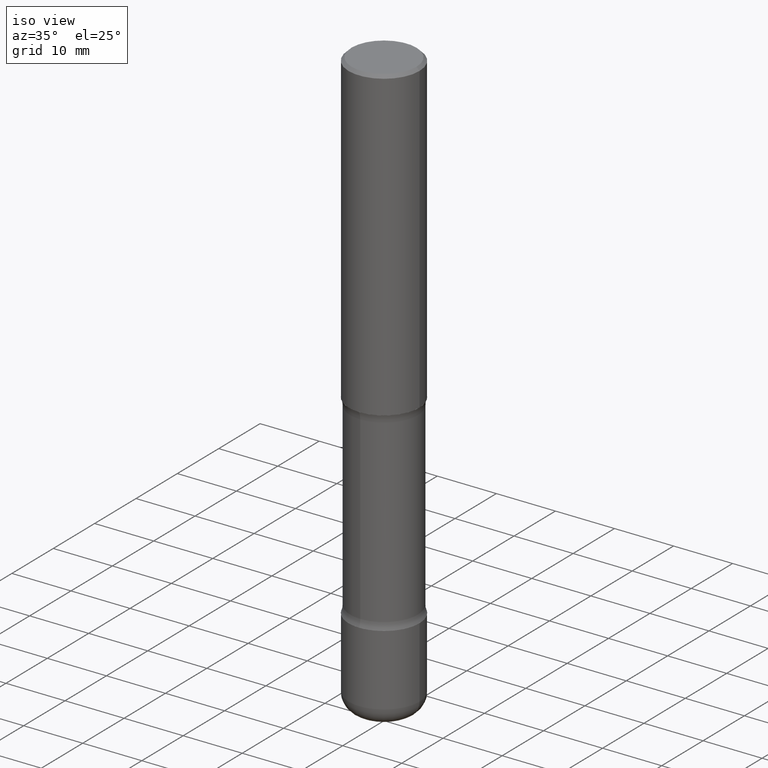
[diagram: clean part render]
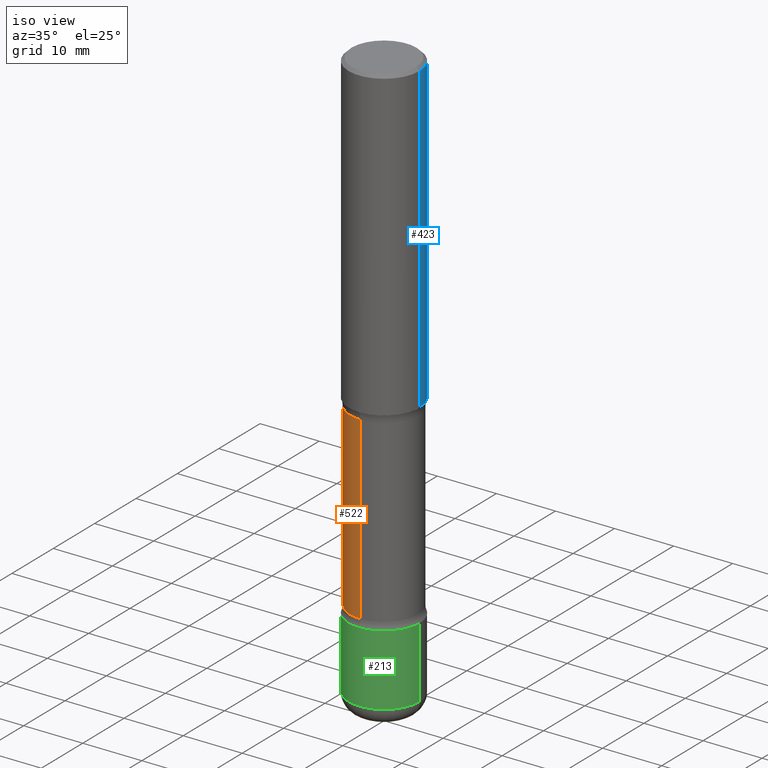
[diagram: same view with three faces highlighted in distinct colors, each labeled with its STEP entity id]
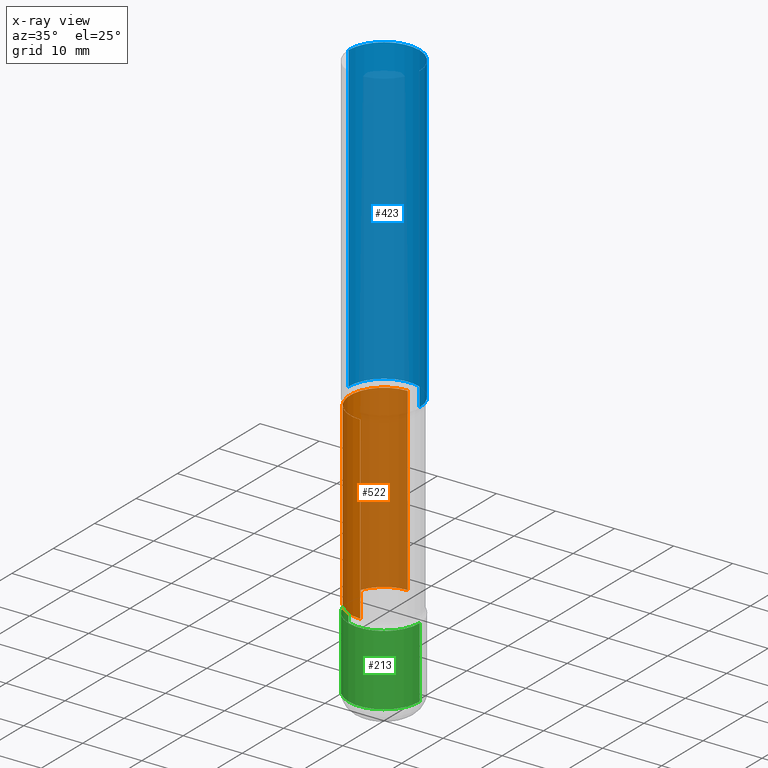
[diagram: x-ray of the same camera — body ghosted, the three highlighted faces saturated]
A machine part, iso view with three faces highlighted in distinct colors.
The next image is the same camera in x-ray (body ghosted, the three faces saturated) — at least one of them is partly hidden behind the body in this view.
Their STEP definitions:

[orange] entity #522 — the highlighted cylindrical surface (partial cylindrical patch) has radius 5.7404 mm, axis along (0, -0, -1).
#4 = DIRECTION ( 'NONE',  ( 2.207249558311628199E-29, -3.832624860395576133E-15, -1.000000000000000000 ) ) ;
#15 = CARTESIAN_POINT ( 'NONE',  ( 9.487118402156788789E-29, -1.394744139485432957E-14, -3.937000000000000277 ) ) ;
#27 = EDGE_CURVE ( 'NONE', #496, #161, #419, .T. ) ;
#43 = ORIENTED_EDGE ( 'NONE', *, *, #108, .T. ) ;
#57 = CARTESIAN_POINT ( 'NONE',  ( -1.585461087284944814E-15, -0.2260000000000063070, -2.096656647682591856 ) ) ;
#75 = ORIENTED_EDGE ( 'NONE', *, *, #134, .F. ) ;
#80 = AXIS2_PLACEMENT_3D ( 'NONE', #436, #391, #296 ) ;
#99 = LINE ( 'NONE', #179, #500 ) ;
#103 = DIRECTION ( 'NONE',  ( 2.207249558311628480E-29, -3.832624860395576133E-15, -1.000000000000000000 ) ) ;
#108 = EDGE_CURVE ( 'NONE', #174, #496, #298, .T. ) ;
#134 = EDGE_CURVE ( 'NONE', #174, #476, #99, .T. ) ;
#141 = CYLINDRICAL_SURFACE ( 'NONE', #379, 0.2259999999999997289 ) ;
#142 = DIRECTION ( 'NONE',  ( 2.207249558311628480E-29, -3.832624860395576133E-15, -1.000000000000000000 ) ) ;
#157 = FACE_OUTER_BOUND ( 'NONE', #363, .T. ) ;
#161 = VERTEX_POINT ( 'NONE', #432 ) ;
#174 = VERTEX_POINT ( 'NONE', #57 ) ;
#179 = CARTESIAN_POINT ( 'NONE',  ( -1.550472547496269144E-15, -0.2260000000000136622, -3.936999999999998945 ) ) ;
#182 = CIRCLE ( 'NONE', #80, 0.2260000000000000342 ) ;
#184 = DIRECTION ( 'NONE',  ( 2.207249558311628199E-29, -3.832624860395576133E-15, -1.000000000000000000 ) ) ;
#255 = ORIENTED_EDGE ( 'NONE', *, *, #27, .T. ) ;
#293 = ORIENTED_EDGE ( 'NONE', *, *, #386, .F. ) ;
#296 = DIRECTION ( 'NONE',  ( 6.982962677686265133E-15, 1.000000000000000000, -4.835129192326128634E-15 ) ) ;
#298 = CIRCLE ( 'NONE', #397, 0.2259999999999994236 ) ;
#314 = VECTOR ( 'NONE', #4, 39.37007874015748143 ) ;
#338 = CARTESIAN_POINT ( 'NONE',  ( -1.585461087284921346E-15, -0.2260000000000115250, -3.296943352317405651 ) ) ;
#341 = CARTESIAN_POINT ( 'NONE',  ( 1.578149565157146314E-15, 0.2259999999999925124, -2.096656647682593633 ) ) ;
#363 = EDGE_LOOP ( 'NONE', ( #75, #43, #255, #293 ) ) ;
#379 = AXIS2_PLACEMENT_3D ( 'NONE', #15, #103, #547 ) ;
#384 = CARTESIAN_POINT ( 'NONE',  ( 1.578149565157189110E-15, 0.2259999999999857956, -3.937000000000001165 ) ) ;
#386 = EDGE_CURVE ( 'NONE', #476, #161, #182, .T. ) ;
#391 = DIRECTION ( 'NONE',  ( 2.207249558311628480E-29, -3.832624860395576133E-15, -1.000000000000000000 ) ) ;
#392 = DIRECTION ( 'NONE',  ( 6.982962677686265922E-15, 1.000000000000000000, -3.626346894244606533E-15 ) ) ;
#397 = AXIS2_PLACEMENT_3D ( 'NONE', #400, #142, #392 ) ;
#400 = CARTESIAN_POINT ( 'NONE',  ( 5.425021350612449526E-29, -6.894095711098900329E-15, -2.096656647682592745 ) ) ;
#419 = LINE ( 'NONE', #384, #314 ) ;
#432 = CARTESIAN_POINT ( 'NONE',  ( 1.578149565157176882E-15, 0.2259999999999885156, -3.296943352317407872 ) ) ;
#436 = CARTESIAN_POINT ( 'NONE',  ( 8.074353649264964625E-29, -1.149434437488457045E-14, -3.296943352317406983 ) ) ;
#476 = VERTEX_POINT ( 'NONE', #338 ) ;
#496 = VERTEX_POINT ( 'NONE', #341 ) ;
#500 = VECTOR ( 'NONE', #184, 39.37007874015748143 ) ;
#522 = ADVANCED_FACE ( 'NONE', ( #157 ), #141, .T. ) ;
#547 = DIRECTION ( 'NONE',  ( 6.982962677686265922E-15, 1.000000000000000000, -4.835129192326135734E-15 ) ) ;

[blue] entity #423 — the highlighted cylindrical surface (partial cylindrical patch) has radius 5.9995 mm, axis along (-0, 0, 1).
#12 = DIRECTION ( 'NONE',  ( -2.445468806185136597E-29, 3.491481338843145583E-15, 1.000000000000000000 ) ) ;
#23 = VECTOR ( 'NONE', #264, 39.37007874015748143 ) ;
#25 = CIRCLE ( 'NONE', #474, 0.2362000000000005207 ) ;
#26 = VERTEX_POINT ( 'NONE', #518 ) ;
#42 = DIRECTION ( 'NONE',  ( 1.000000000000000000, -6.982962677686266711E-15, 4.876176775795935232E-29 ) ) ;
#46 = AXIS2_PLACEMENT_3D ( 'NONE', #468, #12, #42 ) ;
#47 = FACE_OUTER_BOUND ( 'NONE', #508, .T. ) ;
#104 = DIRECTION ( 'NONE',  ( -2.445468806185136597E-29, 3.491481338843145583E-15, 1.000000000000000000 ) ) ;
#105 = EDGE_CURVE ( 'NONE', #151, #26, #514, .T. ) ;
#112 = VERTEX_POINT ( 'NONE', #394 ) ;
#129 = CYLINDRICAL_SURFACE ( 'NONE', #46, 0.2362000000000004096 ) ;
#136 = DIRECTION ( 'NONE',  ( 1.000000000000000000, -6.982962677686266711E-15, 0.000000000000000000 ) ) ;
#151 = VERTEX_POINT ( 'NONE', #265 ) ;
#198 = VERTEX_POINT ( 'NONE', #221 ) ;
#199 = CARTESIAN_POINT ( 'NONE',  ( -0.2362000000000004096, 1.678301941865359550E-15, -1.161852468318210719E-29 ) ) ;
#201 = EDGE_CURVE ( 'NONE', #198, #151, #481, .T. ) ;
#217 = AXIS2_PLACEMENT_3D ( 'NONE', #530, #104, #136 ) ;
#221 = CARTESIAN_POINT ( 'NONE',  ( 0.2362000000000005207, -8.797136381349187883E-15, -2.047200000000000131 ) ) ;
#235 = DIRECTION ( 'NONE',  ( 1.000000000000000000, -6.982962677686269077E-15, 0.000000000000000000 ) ) ;
#253 = VECTOR ( 'NONE', #374, 39.37007874015748143 ) ;
#264 = DIRECTION ( 'NONE',  ( -2.445468806185136877E-29, 3.491481338843145188E-15, 1.000000000000000000 ) ) ;
#265 = CARTESIAN_POINT ( 'NONE',  ( 0.2362000000000002709, -1.690279253850500743E-15, -0.02000000000000006981 ) ) ;
#276 = EDGE_CURVE ( 'NONE', #112, #26, #333, .T. ) ;
#281 = ORIENTED_EDGE ( 'NONE', *, *, #201, .F. ) ;
#331 = ORIENTED_EDGE ( 'NONE', *, *, #105, .F. ) ;
#333 = LINE ( 'NONE', #199, #253 ) ;
#374 = DIRECTION ( 'NONE',  ( -2.445468806185136877E-29, 3.491481338843145188E-15, 1.000000000000000000 ) ) ;
#385 = ORIENTED_EDGE ( 'NONE', *, *, #276, .T. ) ;
#394 = CARTESIAN_POINT ( 'NONE',  ( -0.2362000000000005207, -1.930493169962913045E-15, -2.047200000000000131 ) ) ;
#423 = ADVANCED_FACE ( 'NONE', ( #47 ), #129, .T. ) ;
#451 = CARTESIAN_POINT ( 'NONE',  ( 5.006363740022211680E-29, -7.147760596879688202E-15, -2.047200000000000131 ) ) ;
#468 = CARTESIAN_POINT ( 'NONE',  ( 0.000000000000000000, 0.000000000000000000, 0.000000000000000000 ) ) ;
#474 = AXIS2_PLACEMENT_3D ( 'NONE', #451, #489, #235 ) ;
#481 = LINE ( 'NONE', #485, #23 ) ;
#485 = CARTESIAN_POINT ( 'NONE',  ( 0.2362000000000004096, -1.649375784469499089E-15, 1.151752954443001910E-29 ) ) ;
#489 = DIRECTION ( 'NONE',  ( -2.445468806185136597E-29, 3.491481338843145583E-15, 1.000000000000000000 ) ) ;
#498 = EDGE_CURVE ( 'NONE', #198, #112, #25, .T. ) ;
#508 = EDGE_LOOP ( 'NONE', ( #546, #385, #331, #281 ) ) ;
#514 = CIRCLE ( 'NONE', #217, 0.2362000000000002709 ) ;
#518 = CARTESIAN_POINT ( 'NONE',  ( -0.2362000000000002709, 1.579546157692635002E-15, -0.02000000000000006981 ) ) ;
#530 = CARTESIAN_POINT ( 'NONE',  ( 4.890937612370289799E-31, -6.982962677686315028E-17, -0.02000000000000006981 ) ) ;
#546 = ORIENTED_EDGE ( 'NONE', *, *, #498, .T. ) ;

[green] entity #213 — the highlighted cylindrical surface (partial cylindrical patch) has radius 5.9995 mm, axis along (-0, 0, 1).
#5 = ORIENTED_EDGE ( 'NONE', *, *, #257, .F. ) ;
#7 = CIRCLE ( 'NONE', #188, 0.2362000000000005484 ) ;
#19 = CARTESIAN_POINT ( 'NONE',  ( 0.2362000000000004096, -1.333326893677419946E-14, -3.346399999999999597 ) ) ;
#31 = EDGE_CURVE ( 'NONE', #322, #159, #130, .T. ) ;
#37 = VERTEX_POINT ( 'NONE', #312 ) ;
#49 = CARTESIAN_POINT ( 'NONE',  ( -0.2362000000000004651, 1.678301941865359944E-15, -1.161852468318210999E-29 ) ) ;
#78 = DIRECTION ( 'NONE',  ( 1.000000000000000000, -6.982962677686266711E-15, 4.876176775795935793E-29 ) ) ;
#93 = VERTEX_POINT ( 'NONE', #19 ) ;
#96 = FACE_OUTER_BOUND ( 'NONE', #504, .T. ) ;
#130 = LINE ( 'NONE', #49, #323 ) ;
#132 = CARTESIAN_POINT ( 'NONE',  ( 0.2362000000000004651, -1.649375784469499483E-15, 1.151752954443002330E-29 ) ) ;
#147 = VECTOR ( 'NONE', #303, 39.37007874015748143 ) ;
#159 = VERTEX_POINT ( 'NONE', #256 ) ;
#160 = CARTESIAN_POINT ( 'NONE',  ( 8.183516813017940998E-29, -1.168389315230470136E-14, -3.346399999999999597 ) ) ;
#188 = AXIS2_PLACEMENT_3D ( 'NONE', #416, #273, #376 ) ;
#204 = CARTESIAN_POINT ( 'NONE',  ( 0.000000000000000000, 0.000000000000000000, 0.000000000000000000 ) ) ;
#213 = ADVANCED_FACE ( 'NONE', ( #96 ), #259, .T. ) ;
#234 = EDGE_CURVE ( 'NONE', #322, #37, #7, .T. ) ;
#256 = CARTESIAN_POINT ( 'NONE',  ( -0.2362000000000004096, -1.083045367674103577E-14, -3.346399999999999597 ) ) ;
#257 = EDGE_CURVE ( 'NONE', #159, #93, #408, .T. ) ;
#259 = CYLINDRICAL_SURFACE ( 'NONE', #453, 0.2362000000000004651 ) ;
#273 = DIRECTION ( 'NONE',  ( -2.445468806185136597E-29, 3.491481338843145583E-15, 1.000000000000000000 ) ) ;
#280 = AXIS2_PLACEMENT_3D ( 'NONE', #160, #554, #510 ) ;
#303 = DIRECTION ( 'NONE',  ( -2.445468806185136877E-29, 3.491481338843145188E-15, 1.000000000000000000 ) ) ;
#312 = CARTESIAN_POINT ( 'NONE',  ( 0.2362000000000005484, -1.498299386937759054E-14, -3.818900000000000183 ) ) ;
#322 = VERTEX_POINT ( 'NONE', #497 ) ;
#323 = VECTOR ( 'NONE', #488, 39.37007874015748143 ) ;
#368 = ORIENTED_EDGE ( 'NONE', *, *, #234, .T. ) ;
#376 = DIRECTION ( 'NONE',  ( 1.000000000000000000, -6.982962677686264344E-15, 0.000000000000000000 ) ) ;
#383 = LINE ( 'NONE', #132, #147 ) ;
#393 = EDGE_CURVE ( 'NONE', #37, #93, #383, .T. ) ;
#408 = CIRCLE ( 'NONE', #280, 0.2362000000000004096 ) ;
#416 = CARTESIAN_POINT ( 'NONE',  ( 9.339000823940418668E-29, -1.333361808490808928E-14, -3.818900000000000183 ) ) ;
#453 = AXIS2_PLACEMENT_3D ( 'NONE', #204, #557, #78 ) ;
#488 = DIRECTION ( 'NONE',  ( -2.445468806185136877E-29, 3.491481338843145188E-15, 1.000000000000000000 ) ) ;
#497 = CARTESIAN_POINT ( 'NONE',  ( -0.2362000000000005484, -1.165531614304272816E-14, -3.818900000000000183 ) ) ;
#504 = EDGE_LOOP ( 'NONE', ( #558, #368, #552, #5 ) ) ;
#510 = DIRECTION ( 'NONE',  ( 1.000000000000000000, -6.982962677686268288E-15, 0.000000000000000000 ) ) ;
#552 = ORIENTED_EDGE ( 'NONE', *, *, #393, .T. ) ;
#554 = DIRECTION ( 'NONE',  ( -2.445468806185136597E-29, 3.491481338843145583E-15, 1.000000000000000000 ) ) ;
#557 = DIRECTION ( 'NONE',  ( -2.445468806185136597E-29, 3.491481338843145583E-15, 1.000000000000000000 ) ) ;
#558 = ORIENTED_EDGE ( 'NONE', *, *, #31, .F. ) ;